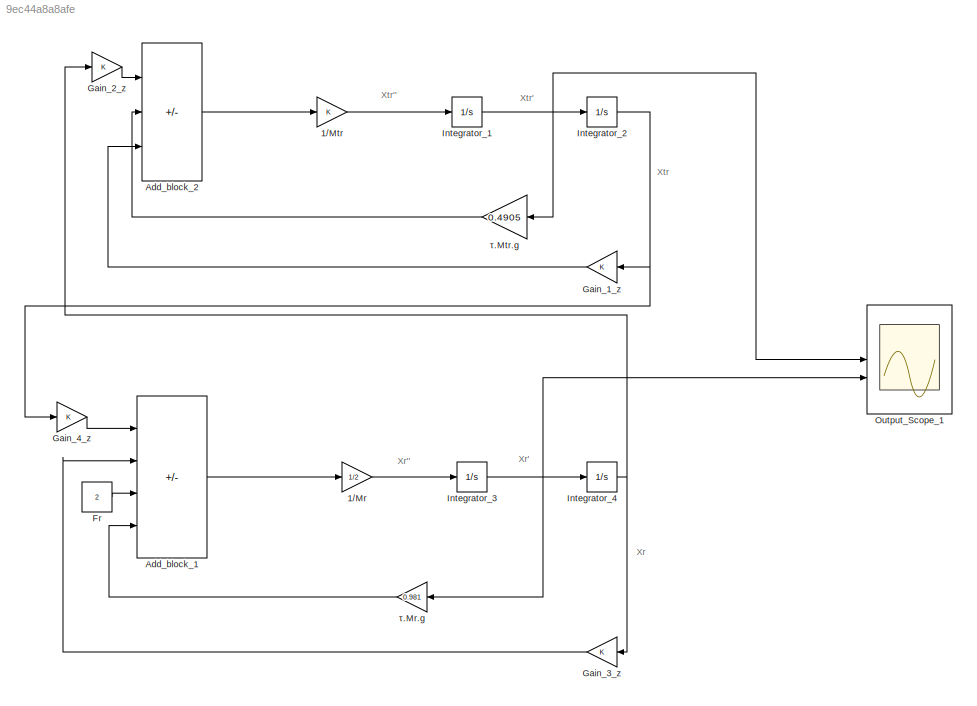
MODEL slx_9ec44a8a8afe
KIND model
CONFIG AbsTol = auto
CONFIG EnableMultiTasking = off
CONFIG FixedStep = auto
CONFIG MaxStep = auto
CONFIG MinStep = auto
CONFIG RelTol = 1e-3
CONFIG SampleTimeConstraint = Unconstrained
CONFIG SolverName = VariableStepAuto
CONFIG StartTime = 0.0
CONFIG StopTime = 1000
BLOCK [Gain] 1//Mr
  Gain = 1/2
BLOCK [Gain] 1//Mtr
BLOCK [Sum] Add_block_1
  IconShape = rectangular
  Inputs = +-+-
BLOCK [Sum] Add_block_2
  IconShape = rectangular
  Inputs = +--
BLOCK [Constant] Fr
  Value = 2
BLOCK [Gain] Gain_1_z
BLOCK [Gain] Gain_2_z
BLOCK [Gain] Gain_3_z
BLOCK [Gain] Gain_4_z
BLOCK [Integrator] Integrator_1
BLOCK [Integrator] Integrator_2
BLOCK [Integrator] Integrator_3
BLOCK [Integrator] Integrator_4
BLOCK [Scope] Output_Scope_1
  Floating = off
  NumInputPorts = 2
  ScopeSpecificationString = Simulink.scopes.TimeScopeBlockCfg('CurrentConfiguration', extmgr.ConfigurationSet(extmgr.Configuration('Core','General UI',true),extmgr.Configuration('Core','Source UI',true),extmgr.Configuration('Sources','WiredSimulink',true),extmgr.Configuration('Visuals','Time Domain',true,'SerializedDisplays',{struct('MinYLimReal','-0.1744','MaxYLimReal','1.56962','YLabelReal','','MinYLimMag','0.00000','MaxYL...<+1426ch>
BLOCK [Gain] τ.Mr.g
  Gain = 0.981
BLOCK [Gain] τ.Mtr.g
  Gain = 0.4905
ANNOTATION (root): Xtr''
ANNOTATION (root): Xr
ANNOTATION (root): Xr'
ANNOTATION (root): Xr''
ANNOTATION (root): Xtr
ANNOTATION (root): Xtr'
LINE 1//Mr:1 -> Integrator_3:1
LINE 1//Mtr:1 -> Integrator_1:1
LINE Add_block_1:1 -> 1//Mr:1
LINE Add_block_2:1 -> 1//Mtr:1
LINE Fr:1 -> Add_block_1:3
LINE Gain_1_z:1 -> Add_block_2:3
LINE Gain_2_z:1 -> Add_block_2:1
LINE Gain_3_z:1 -> Add_block_1:2
LINE Gain_4_z:1 -> Add_block_1:1
NET Integrator_1:1 -> Integrator_2:1, Output_Scope_1:1, τ.Mtr.g:1
NET Integrator_2:1 -> Gain_1_z:1, Gain_4_z:1
NET Integrator_3:1 -> Integrator_4:1, Output_Scope_1:2, τ.Mr.g:1
NET Integrator_4:1 -> Gain_2_z:1, Gain_3_z:1
LINE τ.Mr.g:1 -> Add_block_1:4
LINE τ.Mtr.g:1 -> Add_block_2:2
note: NET lines group one-source signal fan-out (src -> all destinations, sorted); 1:1 wires keep LINE
